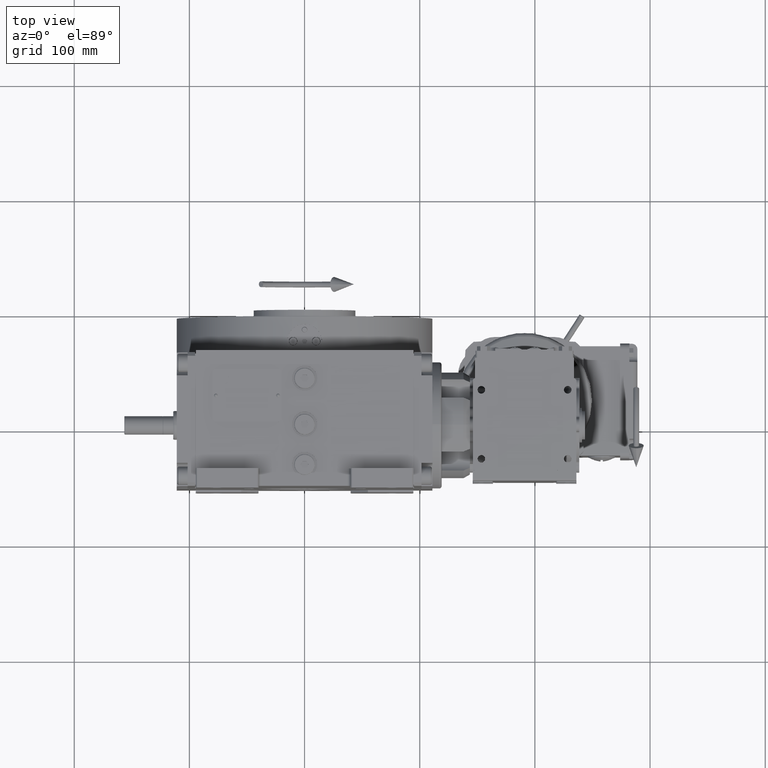
[diagram: clean part render]
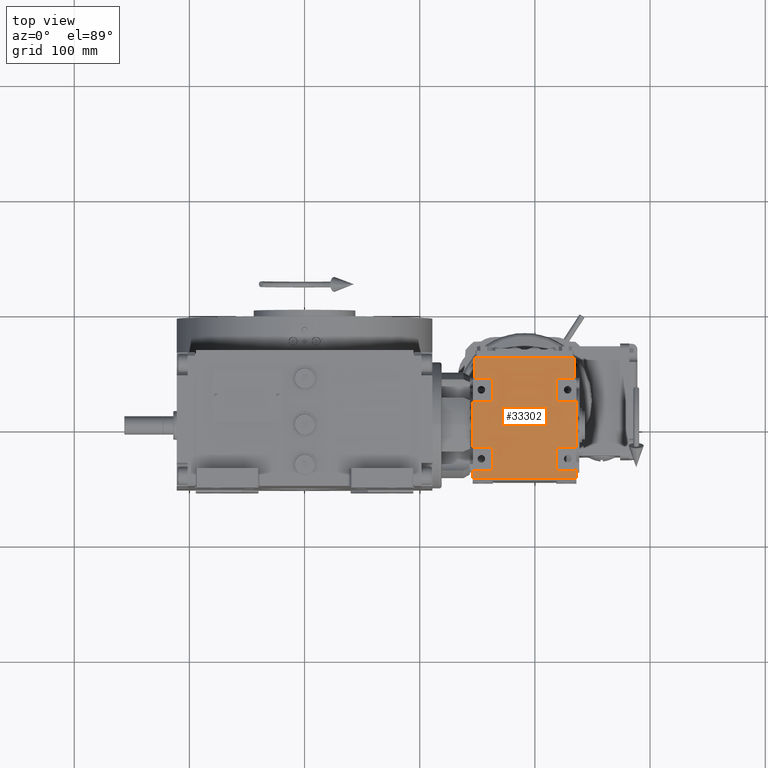
[diagram: same view with one face highlighted and labeled with its STEP entity id]
A machine part, top view. The second image highlights one B-rep face of the part: STEP entity #33302.
In plain terms, the highlighted planar face has unit normal (0, 0, -1).
Its self-contained STEP definition (entity closure, byte-faithful):
#20 = LINE ( 'NONE', #55152, #88598 ) ;
#98 = CIRCLE ( 'NONE', #16273, 1.599999999999997202 ) ;
#226 = CARTESIAN_POINT ( 'NONE',  ( -49.00000000000002842, 27.49999999999999645, 40.00000000000056843 ) ) ;
#428 = CARTESIAN_POINT ( 'NONE',  ( -49.00000000000113687, 44.99999999999998579, 58.00000000000056843 ) ) ;
#465 = CARTESIAN_POINT ( 'NONE',  ( -49.00000000000105871, -27.49999999999999645, 38.40000000000056701 ) ) ;
#862 = VECTOR ( 'NONE', #98782, 1000.000000000000000 ) ;
#1099 = AXIS2_PLACEMENT_3D ( 'NONE', #70783, #41425, #17143 ) ;
#1228 = CARTESIAN_POINT ( 'NONE',  ( -49.00000000000002842, -43.39999999999999147, 21.60000000000048104 ) ) ;
#1534 = AXIS2_PLACEMENT_3D ( 'NONE', #44915, #68658, #46399 ) ;
#1852 = LINE ( 'NONE', #47890, #29928 ) ;
#2828 = ORIENTED_EDGE ( 'NONE', *, *, #38984, .F. ) ;
#3039 = ORIENTED_EDGE ( 'NONE', *, *, #25816, .T. ) ;
#4201 = CIRCLE ( 'NONE', #13869, 1.600000000000000755 ) ;
#4412 = LINE ( 'NONE', #35262, #8875 ) ;
#4585 = VERTEX_POINT ( 'NONE', #30553 ) ;
#5180 = EDGE_CURVE ( 'NONE', #25248, #24804, #75665, .T. ) ;
#5904 = CARTESIAN_POINT ( 'NONE',  ( -49.00000000000000000, 29.10000000000001563, 20.00000000000047962 ) ) ;
#6231 = CARTESIAN_POINT ( 'NONE',  ( -48.99999999999894840, -27.49999999999999645, -38.39999999999943014 ) ) ;
#6594 = VECTOR ( 'NONE', #63134, 1000.000000000000000 ) ;
#6668 = EDGE_CURVE ( 'NONE', #46509, #32365, #18791, .T. ) ;
#6840 = DIRECTION ( 'NONE',  ( 9.769962616701377556E-15, -1.592073230999207776E-47, -1.000000000000000000 ) ) ;
#6915 = CARTESIAN_POINT ( 'NONE',  ( -48.99999999999894840, 27.49999999999999645, -38.39999999999943014 ) ) ;
#7027 = CARTESIAN_POINT ( 'NONE',  ( -48.99999999999997158, -43.39999999999999147, -39.99999999999943157 ) ) ;
#7191 = DIRECTION ( 'NONE',  ( 1.000000000000000000, 2.787682318313749644E-47, -9.769962616701377556E-15 ) ) ;
#7562 = DIRECTION ( 'NONE',  ( 9.769962616701377556E-15, -1.592073230999207776E-47, -1.000000000000000000 ) ) ;
#7703 = VECTOR ( 'NONE', #48901, 1000.000000000000000 ) ;
#7759 = AXIS2_PLACEMENT_3D ( 'NONE', #21764, #29362, #67791 ) ;
#8875 = VECTOR ( 'NONE', #98510, 1000.000000000000000 ) ;
#9200 = VECTOR ( 'NONE', #65705, 1000.000000000000000 ) ;
#9652 = CARTESIAN_POINT ( 'NONE',  ( -48.99999999999894840, 29.10000000000001563, -38.39999999999943014 ) ) ;
#9725 = CARTESIAN_POINT ( 'NONE',  ( -49.00000000000113687, 44.99999999999998579, 58.00000000000056843 ) ) ;
#9835 = VECTOR ( 'NONE', #37120, 1000.000000000000000 ) ;
#10174 = CARTESIAN_POINT ( 'NONE',  ( -49.00000000000002842, 44.99999999999998579, 21.60000000000048104 ) ) ;
#10583 = ORIENTED_EDGE ( 'NONE', *, *, #83548, .T. ) ;
#11480 = DIRECTION ( 'NONE',  ( 1.936935258355154808E-30, 1.000000000000000000, -1.982541115402059686E-16 ) ) ;
#11628 = DIRECTION ( 'NONE',  ( -8.673617379884051249E-15, 0.000000000000000000, 1.000000000000000000 ) ) ;
#11662 = DIRECTION ( 'NONE',  ( -9.769962616701377556E-15, 1.318382124685768400E-47, 1.000000000000000000 ) ) ;
#11679 = DIRECTION ( 'NONE',  ( 1.000000000000000000, 2.787682318313749644E-47, -9.769962616701377556E-15 ) ) ;
#11740 = ORIENTED_EDGE ( 'NONE', *, *, #58164, .T. ) ;
#11945 = LINE ( 'NONE', #43306, #54912 ) ;
#12158 = CARTESIAN_POINT ( 'NONE',  ( -49.00000000000002842, -27.49999999999999645, 21.60000000000048104 ) ) ;
#13833 = VERTEX_POINT ( 'NONE', #12158 ) ;
#13869 = AXIS2_PLACEMENT_3D ( 'NONE', #24550, #98648, #91093 ) ;
#14239 = AXIS2_PLACEMENT_3D ( 'NONE', #9652, #11679, #18268 ) ;
#14293 = DIRECTION ( 'NONE',  ( -8.673617379884030739E-15, 0.000000000000000000, 1.000000000000000000 ) ) ;
#14394 = VERTEX_POINT ( 'NONE', #85381 ) ;
#14651 = CARTESIAN_POINT ( 'NONE',  ( -49.00000000000105871, 29.10000000000001563, 38.40000000000056701 ) ) ;
#14965 = ORIENTED_EDGE ( 'NONE', *, *, #32789, .T. ) ;
#15985 = CIRCLE ( 'NONE', #85508, 1.599999999999997202 ) ;
#16060 = VECTOR ( 'NONE', #11480, 1000.000000000000000 ) ;
#16273 = AXIS2_PLACEMENT_3D ( 'NONE', #46227, #53836, #93306 ) ;
#16336 = DIRECTION ( 'NONE',  ( 9.899661568176278357E-15, -1.531028393104133123E-47, -1.000000000000000000 ) ) ;
#16377 = CARTESIAN_POINT ( 'NONE',  ( -49.00000000000002842, 44.99999999999998579, 40.00000000000056843 ) ) ;
#16428 = EDGE_CURVE ( 'NONE', #62240, #97797, #98565, .T. ) ;
#16885 = CARTESIAN_POINT ( 'NONE',  ( -48.99999999999997158, 29.10000000000001563, -21.59999999999952180 ) ) ;
#17143 = DIRECTION ( 'NONE',  ( -8.673617379884030739E-15, 0.000000000000000000, 1.000000000000000000 ) ) ;
#17308 = ORIENTED_EDGE ( 'NONE', *, *, #61358, .F. ) ;
#17818 = EDGE_CURVE ( 'NONE', #67243, #97797, #65924, .T. ) ;
#18268 = DIRECTION ( 'NONE',  ( -8.673617379884051249E-15, 0.000000000000000000, 1.000000000000000000 ) ) ;
#18791 = LINE ( 'NONE', #68796, #64582 ) ;
#18964 = ORIENTED_EDGE ( 'NONE', *, *, #65019, .T. ) ;
#19261 = CARTESIAN_POINT ( 'NONE',  ( -49.00000000000113687, -44.99999999999998579, 58.00000000000056843 ) ) ;
#19279 = EDGE_CURVE ( 'NONE', #92214, #73135, #96521, .T. ) ;
#19355 = VERTEX_POINT ( 'NONE', #44101 ) ;
#19621 = ORIENTED_EDGE ( 'NONE', *, *, #57845, .F. ) ;
#19948 = DIRECTION ( 'NONE',  ( 9.899661568176278357E-15, -1.531028393104133123E-47, -1.000000000000000000 ) ) ;
#20994 = DIRECTION ( 'NONE',  ( -1.011690731189673897E-14, 3.469446951953610245E-16, 1.000000000000000000 ) ) ;
#21764 = CARTESIAN_POINT ( 'NONE',  ( -48.99999999999894840, -43.39999999999999147, -38.39999999999943014 ) ) ;
#21795 = DIRECTION ( 'NONE',  ( -8.673617379884051249E-15, 0.000000000000000000, 1.000000000000000000 ) ) ;
#21837 = LINE ( 'NONE', #42643, #862 ) ;
#21853 = LINE ( 'NONE', #29450, #31487 ) ;
#21962 = CARTESIAN_POINT ( 'NONE',  ( -49.00000000000002842, -29.10000000000001563, 40.00000000000056843 ) ) ;
#22638 = AXIS2_PLACEMENT_3D ( 'NONE', #30463, #7191, #14293 ) ;
#23570 = ORIENTED_EDGE ( 'NONE', *, *, #98759, .F. ) ;
#24384 = CARTESIAN_POINT ( 'NONE',  ( -49.00000000000002842, -44.99999999999998579, 21.60000000000048104 ) ) ;
#24550 = CARTESIAN_POINT ( 'NONE',  ( -49.00000000000002842, 29.10000000000001563, 21.60000000000048104 ) ) ;
#24804 = VERTEX_POINT ( 'NONE', #92580 ) ;
#24815 = EDGE_CURVE ( 'NONE', #30412, #70325, #94063, .T. ) ;
#25248 = VERTEX_POINT ( 'NONE', #6915 ) ;
#25301 = ORIENTED_EDGE ( 'NONE', *, *, #19279, .F. ) ;
#25508 = ORIENTED_EDGE ( 'NONE', *, *, #85723, .F. ) ;
#25809 = CIRCLE ( 'NONE', #75982, 1.599999999999997202 ) ;
#25816 = EDGE_CURVE ( 'NONE', #50351, #91840, #36398, .T. ) ;
#26353 = CARTESIAN_POINT ( 'NONE',  ( -48.99999999999997158, -44.99999999999998579, -21.59999999999952180 ) ) ;
#26440 = VERTEX_POINT ( 'NONE', #49702 ) ;
#26848 = DIRECTION ( 'NONE',  ( -8.673617379884030739E-15, 0.000000000000000000, 1.000000000000000000 ) ) ;
#27068 = ORIENTED_EDGE ( 'NONE', *, *, #24815, .F. ) ;
#27349 = DIRECTION ( 'NONE',  ( 1.000000000000000000, 2.787682318313749644E-47, -9.769962616701377556E-15 ) ) ;
#29216 = CARTESIAN_POINT ( 'NONE',  ( -48.99999999999997158, -44.99999999999998579, -39.99999999999943157 ) ) ;
#29331 = LINE ( 'NONE', #32290, #77297 ) ;
#29338 = ORIENTED_EDGE ( 'NONE', *, *, #80080, .T. ) ;
#29362 = DIRECTION ( 'NONE',  ( 1.000000000000000000, 2.787682318313749644E-47, -9.769962616701377556E-15 ) ) ;
#29450 = CARTESIAN_POINT ( 'NONE',  ( -49.00000000000113687, -44.99999999999998579, 58.00000000000056843 ) ) ;
#29928 = VECTOR ( 'NONE', #73215, 1000.000000000000000 ) ;
#30412 = VERTEX_POINT ( 'NONE', #82957 ) ;
#30463 = CARTESIAN_POINT ( 'NONE',  ( -49.00000000000002842, 43.39999999999999147, 21.60000000000048104 ) ) ;
#30553 = CARTESIAN_POINT ( 'NONE',  ( -48.99999999999886313, 44.99999999999998579, -46.99999999999943157 ) ) ;
#30855 = EDGE_CURVE ( 'NONE', #19355, #32636, #4412, .T. ) ;
#30869 = DIRECTION ( 'NONE',  ( -2.856105094892107908E-47, -1.000000000000000000, -1.430389277597439021E-47 ) ) ;
#31099 = DIRECTION ( 'NONE',  ( -8.673617379884030739E-15, 0.000000000000000000, 1.000000000000000000 ) ) ;
#31487 = VECTOR ( 'NONE', #92725, 1000.000000000000000 ) ;
#31773 = CIRCLE ( 'NONE', #1099, 1.600000000000000755 ) ;
#32024 = EDGE_CURVE ( 'NONE', #26440, #36533, #4201, .T. ) ;
#32290 = CARTESIAN_POINT ( 'NONE',  ( -49.00000000000113687, -42.99999999999998579, 58.00000000000056843 ) ) ;
#32365 = VERTEX_POINT ( 'NONE', #21962 ) ;
#32590 = EDGE_CURVE ( 'NONE', #33009, #51032, #85724, .T. ) ;
#32636 = VERTEX_POINT ( 'NONE', #61415 ) ;
#32772 = ORIENTED_EDGE ( 'NONE', *, *, #35213, .T. ) ;
#32789 = EDGE_CURVE ( 'NONE', #4585, #56509, #21837, .T. ) ;
#33009 = VERTEX_POINT ( 'NONE', #76002 ) ;
#33302 = ADVANCED_FACE ( 'NONE', ( #98163 ), #89606, .F. ) ;
#34290 = EDGE_CURVE ( 'NONE', #36048, #4585, #63364, .T. ) ;
#34926 = DIRECTION ( 'NONE',  ( 1.000000000000000000, 2.787682318313749644E-47, -9.769962616701377556E-15 ) ) ;
#35213 = EDGE_CURVE ( 'NONE', #62240, #66749, #38591, .T. ) ;
#35262 = CARTESIAN_POINT ( 'NONE',  ( -49.00000000000000000, 27.49999999999999645, -19.99999999999952038 ) ) ;
#35347 = VECTOR ( 'NONE', #20994, 1000.000000000000000 ) ;
#35639 = LINE ( 'NONE', #98395, #9835 ) ;
#36048 = VERTEX_POINT ( 'NONE', #69871 ) ;
#36398 = LINE ( 'NONE', #60191, #68141 ) ;
#36533 = VERTEX_POINT ( 'NONE', #5904 ) ;
#36540 = VECTOR ( 'NONE', #39633, 1000.000000000000000 ) ;
#37120 = DIRECTION ( 'NONE',  ( -2.856105094892107908E-47, -1.000000000000000000, -1.430389277597439021E-47 ) ) ;
#37598 = CARTESIAN_POINT ( 'NONE',  ( -48.99999999999997158, 43.39999999999999147, -39.99999999999943157 ) ) ;
#37712 = DIRECTION ( 'NONE',  ( 1.000000000000000000, 2.787682318313749644E-47, -9.769962616701377556E-15 ) ) ;
#38581 = ORIENTED_EDGE ( 'NONE', *, *, #58878, .F. ) ;
#38591 = CIRCLE ( 'NONE', #40183, 1.599999999999997202 ) ;
#38984 = EDGE_CURVE ( 'NONE', #83810, #13833, #41300, .T. ) ;
#39213 = EDGE_CURVE ( 'NONE', #91840, #51032, #90900, .T. ) ;
#39633 = DIRECTION ( 'NONE',  ( 2.856105094892107908E-47, 1.000000000000000000, 1.430389277597439021E-47 ) ) ;
#39773 = CARTESIAN_POINT ( 'NONE',  ( -48.99999999999886313, -44.99999999999998579, -46.99999999999943157 ) ) ;
#39817 = CARTESIAN_POINT ( 'NONE',  ( -48.99999999999997158, 27.49999999999999645, -21.59999999999952180 ) ) ;
#40183 = AXIS2_PLACEMENT_3D ( 'NONE', #63730, #50085, #11628 ) ;
#40805 = ORIENTED_EDGE ( 'NONE', *, *, #58614, .T. ) ;
#40881 = CARTESIAN_POINT ( 'NONE',  ( -49.00000000000000000, -44.99999999999998579, 20.00000000000047962 ) ) ;
#41300 = LINE ( 'NONE', #79276, #7703 ) ;
#41425 = DIRECTION ( 'NONE',  ( 1.000000000000000000, 2.787682318313749644E-47, -9.769962616701377556E-15 ) ) ;
#41909 = EDGE_CURVE ( 'NONE', #65385, #69412, #45263, .T. ) ;
#42643 = CARTESIAN_POINT ( 'NONE',  ( -48.99999999999886313, -44.99999999999998579, -46.99999999999943157 ) ) ;
#43306 = CARTESIAN_POINT ( 'NONE',  ( -48.99999999999997158, 27.49999999999999645, -39.99999999999943157 ) ) ;
#44101 = CARTESIAN_POINT ( 'NONE',  ( -49.00000000000000000, 29.10000000000001563, -19.99999999999952038 ) ) ;
#44275 = CARTESIAN_POINT ( 'NONE',  ( -48.99999999999997158, -27.49999999999999645, -21.59999999999952180 ) ) ;
#44512 = DIRECTION ( 'NONE',  ( 2.856105094892107908E-47, 1.000000000000000000, 1.430389277597439021E-47 ) ) ;
#44915 = CARTESIAN_POINT ( 'NONE',  ( -48.99999999999997158, -43.39999999999999147, -21.59999999999952180 ) ) ;
#45263 = CIRCLE ( 'NONE', #22638, 1.600000000000000755 ) ;
#45532 = DIRECTION ( 'NONE',  ( -8.673617379884051249E-15, 0.000000000000000000, 1.000000000000000000 ) ) ;
#45702 = AXIS2_PLACEMENT_3D ( 'NONE', #46309, #37712, #76706 ) ;
#46227 = CARTESIAN_POINT ( 'NONE',  ( -49.00000000000105871, -29.10000000000001563, 38.40000000000056701 ) ) ;
#46309 = CARTESIAN_POINT ( 'NONE',  ( -48.99999999999997158, -29.10000000000001563, -21.59999999999952180 ) ) ;
#46399 = DIRECTION ( 'NONE',  ( -8.673617379884030739E-15, 0.000000000000000000, 1.000000000000000000 ) ) ;
#46509 = VERTEX_POINT ( 'NONE', #51823 ) ;
#47631 = CARTESIAN_POINT ( 'NONE',  ( -49.00000000000000000, -43.39999999999999147, -19.99999999999952038 ) ) ;
#47743 = DIRECTION ( 'NONE',  ( -8.673617379884030739E-15, 0.000000000000000000, 1.000000000000000000 ) ) ;
#47890 = CARTESIAN_POINT ( 'NONE',  ( -48.99999999999997158, -27.49999999999999645, -39.99999999999943157 ) ) ;
#48901 = DIRECTION ( 'NONE',  ( 1.011690731189673897E-14, 3.469446951953610245E-16, -1.000000000000000000 ) ) ;
#49702 = CARTESIAN_POINT ( 'NONE',  ( -49.00000000000002842, 27.49999999999999645, 21.60000000000048104 ) ) ;
#50085 = DIRECTION ( 'NONE',  ( 1.000000000000000000, 2.787682318313749644E-47, -9.769962616701377556E-15 ) ) ;
#50351 = VERTEX_POINT ( 'NONE', #70058 ) ;
#51032 = VERTEX_POINT ( 'NONE', #94258 ) ;
#51823 = CARTESIAN_POINT ( 'NONE',  ( -49.00000000000002842, -42.99999999999998579, 40.00000000000056843 ) ) ;
#52061 = VERTEX_POINT ( 'NONE', #24384 ) ;
#52346 = LINE ( 'NONE', #226, #35347 ) ;
#53765 = CARTESIAN_POINT ( 'NONE',  ( -49.00000000000000000, -43.39999999999999147, 20.00000000000047962 ) ) ;
#53836 = DIRECTION ( 'NONE',  ( 1.000000000000000000, 2.787682318313749644E-47, -9.769962616701377556E-15 ) ) ;
#53871 = EDGE_CURVE ( 'NONE', #69412, #14394, #55549, .T. ) ;
#54912 = VECTOR ( 'NONE', #73698, 1000.000000000000000 ) ;
#55152 = CARTESIAN_POINT ( 'NONE',  ( -48.99999999999997158, 44.99999999999998579, -39.99999999999943157 ) ) ;
#55549 = LINE ( 'NONE', #428, #90016 ) ;
#55815 = ORIENTED_EDGE ( 'NONE', *, *, #61494, .T. ) ;
#56509 = VERTEX_POINT ( 'NONE', #39773 ) ;
#57642 = VERTEX_POINT ( 'NONE', #82245 ) ;
#57845 = EDGE_CURVE ( 'NONE', #26440, #57642, #52346, .T. ) ;
#58164 = EDGE_CURVE ( 'NONE', #33009, #57642, #15985, .T. ) ;
#58219 = DIRECTION ( 'NONE',  ( 1.000000000000000000, -1.682181801368869444E-32, 9.769962616701377556E-15 ) ) ;
#58614 = EDGE_CURVE ( 'NONE', #92214, #72268, #87242, .T. ) ;
#58840 = ORIENTED_EDGE ( 'NONE', *, *, #6668, .F. ) ;
#58878 = EDGE_CURVE ( 'NONE', #25248, #87739, #11945, .T. ) ;
#59211 = ORIENTED_EDGE ( 'NONE', *, *, #16428, .F. ) ;
#60191 = CARTESIAN_POINT ( 'NONE',  ( -49.00000000000113687, -44.99999999999998579, 58.00000000000056843 ) ) ;
#60548 = ORIENTED_EDGE ( 'NONE', *, *, #41909, .T. ) ;
#61358 = EDGE_CURVE ( 'NONE', #65385, #36533, #35639, .T. ) ;
#61415 = CARTESIAN_POINT ( 'NONE',  ( -49.00000000000000000, 43.39999999999999147, -19.99999999999952038 ) ) ;
#61494 = EDGE_CURVE ( 'NONE', #83810, #32365, #98, .T. ) ;
#61779 = ORIENTED_EDGE ( 'NONE', *, *, #75886, .F. ) ;
#62204 = CIRCLE ( 'NONE', #91384, 1.600000000000000755 ) ;
#62240 = VERTEX_POINT ( 'NONE', #87087 ) ;
#62633 = DIRECTION ( 'NONE',  ( 9.899661568176278357E-15, -1.531028393104133123E-47, -1.000000000000000000 ) ) ;
#62816 = ORIENTED_EDGE ( 'NONE', *, *, #89186, .F. ) ;
#63134 = DIRECTION ( 'NONE',  ( -3.873870516710310316E-30, -1.000000000000000000, 3.965082230804129727E-16 ) ) ;
#63364 = LINE ( 'NONE', #9725, #78613 ) ;
#63459 = ORIENTED_EDGE ( 'NONE', *, *, #53871, .T. ) ;
#63508 = CIRCLE ( 'NONE', #86189, 1.600000000000000755 ) ;
#63730 = CARTESIAN_POINT ( 'NONE',  ( -48.99999999999894840, -29.10000000000001563, -38.39999999999943014 ) ) ;
#64582 = VECTOR ( 'NONE', #99705, 1000.000000000000000 ) ;
#65019 = EDGE_CURVE ( 'NONE', #52061, #70325, #66437, .T. ) ;
#65385 = VERTEX_POINT ( 'NONE', #83675 ) ;
#65620 = ORIENTED_EDGE ( 'NONE', *, *, #32024, .T. ) ;
#65705 = DIRECTION ( 'NONE',  ( -2.856105094892107908E-47, -1.000000000000000000, -1.430389277597439021E-47 ) ) ;
#65924 = CIRCLE ( 'NONE', #7759, 1.599999999999997202 ) ;
#66246 = EDGE_CURVE ( 'NONE', #68712, #73135, #68296, .T. ) ;
#66437 = CIRCLE ( 'NONE', #98806, 1.600000000000000755 ) ;
#66749 = VERTEX_POINT ( 'NONE', #6231 ) ;
#67243 = VERTEX_POINT ( 'NONE', #67328 ) ;
#67328 = CARTESIAN_POINT ( 'NONE',  ( -48.99999999999894840, -44.99999999999998579, -38.39999999999943014 ) ) ;
#67443 = LINE ( 'NONE', #74578, #88123 ) ;
#67659 = ORIENTED_EDGE ( 'NONE', *, *, #30855, .F. ) ;
#67791 = DIRECTION ( 'NONE',  ( -8.673617379884051249E-15, 0.000000000000000000, 1.000000000000000000 ) ) ;
#68141 = VECTOR ( 'NONE', #44512, 1000.000000000000000 ) ;
#68296 = CIRCLE ( 'NONE', #45702, 1.600000000000000755 ) ;
#68658 = DIRECTION ( 'NONE',  ( 1.000000000000000000, 2.787682318313749644E-47, -9.769962616701377556E-15 ) ) ;
#68712 = VERTEX_POINT ( 'NONE', #44275 ) ;
#68796 = CARTESIAN_POINT ( 'NONE',  ( -49.00000000000002842, -27.49999999999999645, 40.00000000000056843 ) ) ;
#68837 = CARTESIAN_POINT ( 'NONE',  ( -48.99999999999894840, 43.39999999999999147, -38.39999999999943014 ) ) ;
#68863 = EDGE_LOOP ( 'NONE', ( #83992, #14965, #87196, #86399, #59211, #32772, #25508, #69686, #25301, #40805, #23570, #18964, #27068, #89810, #2828, #55815, #58840, #61779, #3039, #92876, #89969, #11740, #19621, #65620, #17308, #60548, #63459, #90435, #67659, #10583, #38581, #88860, #62816, #29338 ) ) ;
#69412 = VERTEX_POINT ( 'NONE', #10174 ) ;
#69676 = EDGE_CURVE ( 'NONE', #14394, #32636, #62204, .T. ) ;
#69686 = ORIENTED_EDGE ( 'NONE', *, *, #66246, .T. ) ;
#69871 = CARTESIAN_POINT ( 'NONE',  ( -48.99999999999894840, 44.99999999999998579, -38.39999999999943014 ) ) ;
#70058 = CARTESIAN_POINT ( 'NONE',  ( -49.00000000000113687, -42.99999999999998579, 58.00000000000056843 ) ) ;
#70325 = VERTEX_POINT ( 'NONE', #53765 ) ;
#70783 = CARTESIAN_POINT ( 'NONE',  ( -49.00000000000002842, -29.10000000000001563, 21.60000000000048104 ) ) ;
#70971 = EDGE_CURVE ( 'NONE', #67243, #56509, #67443, .T. ) ;
#71715 = CARTESIAN_POINT ( 'NONE',  ( -49.00000000000000000, -27.49999999999999645, -19.99999999999952038 ) ) ;
#72268 = VERTEX_POINT ( 'NONE', #26353 ) ;
#72935 = CARTESIAN_POINT ( 'NONE',  ( -48.99999999999997158, 43.39999999999999147, -21.59999999999952180 ) ) ;
#72952 = EDGE_CURVE ( 'NONE', #30412, #13833, #31773, .T. ) ;
#73135 = VERTEX_POINT ( 'NONE', #79670 ) ;
#73205 = CARTESIAN_POINT ( 'NONE',  ( -49.00000000000113687, 42.99999999999998579, 58.00000000000056843 ) ) ;
#73215 = DIRECTION ( 'NONE',  ( 1.011690731189673897E-14, -1.387778780781440154E-15, -1.000000000000000000 ) ) ;
#73698 = DIRECTION ( 'NONE',  ( -1.011690731189673897E-14, 1.565623842786603819E-47, 1.000000000000000000 ) ) ;
#74578 = CARTESIAN_POINT ( 'NONE',  ( -49.00000000000113687, -44.99999999999998579, 58.00000000000056843 ) ) ;
#75665 = CIRCLE ( 'NONE', #14239, 1.599999999999997202 ) ;
#75886 = EDGE_CURVE ( 'NONE', #50351, #46509, #29331, .T. ) ;
#75982 = AXIS2_PLACEMENT_3D ( 'NONE', #68837, #91671, #21795 ) ;
#76002 = CARTESIAN_POINT ( 'NONE',  ( -49.00000000000002842, 29.10000000000001563, 40.00000000000056843 ) ) ;
#76706 = DIRECTION ( 'NONE',  ( -8.673617379884030739E-15, 0.000000000000000000, 1.000000000000000000 ) ) ;
#77297 = VECTOR ( 'NONE', #7562, 1000.000000000000000 ) ;
#77664 = DIRECTION ( 'NONE',  ( 1.000000000000000000, 2.787682318313749644E-47, -9.769962616701377556E-15 ) ) ;
#78613 = VECTOR ( 'NONE', #16336, 1000.000000000000000 ) ;
#79276 = CARTESIAN_POINT ( 'NONE',  ( -49.00000000000000000, -27.49999999999999645, 20.00000000000047962 ) ) ;
#79663 = VERTEX_POINT ( 'NONE', #37598 ) ;
#79670 = CARTESIAN_POINT ( 'NONE',  ( -49.00000000000000000, -29.10000000000001563, -19.99999999999952038 ) ) ;
#80080 = EDGE_CURVE ( 'NONE', #79663, #36048, #25809, .T. ) ;
#82245 = CARTESIAN_POINT ( 'NONE',  ( -49.00000000000105871, 27.49999999999999645, 38.40000000000056701 ) ) ;
#82957 = CARTESIAN_POINT ( 'NONE',  ( -49.00000000000000000, -29.10000000000001563, 20.00000000000047962 ) ) ;
#83548 = EDGE_CURVE ( 'NONE', #19355, #87739, #63508, .T. ) ;
#83675 = CARTESIAN_POINT ( 'NONE',  ( -49.00000000000000000, 43.39999999999999147, 20.00000000000047962 ) ) ;
#83810 = VERTEX_POINT ( 'NONE', #465 ) ;
#83992 = ORIENTED_EDGE ( 'NONE', *, *, #34290, .T. ) ;
#85237 = VECTOR ( 'NONE', #6840, 1000.000000000000000 ) ;
#85381 = CARTESIAN_POINT ( 'NONE',  ( -48.99999999999997158, 44.99999999999998579, -21.59999999999952180 ) ) ;
#85508 = AXIS2_PLACEMENT_3D ( 'NONE', #14651, #97819, #45532 ) ;
#85723 = EDGE_CURVE ( 'NONE', #68712, #66749, #1852, .T. ) ;
#85724 = LINE ( 'NONE', #16377, #36540 ) ;
#86189 = AXIS2_PLACEMENT_3D ( 'NONE', #16885, #34926, #47743 ) ;
#86399 = ORIENTED_EDGE ( 'NONE', *, *, #17818, .T. ) ;
#87087 = CARTESIAN_POINT ( 'NONE',  ( -48.99999999999997158, -29.10000000000001563, -39.99999999999943157 ) ) ;
#87196 = ORIENTED_EDGE ( 'NONE', *, *, #70971, .F. ) ;
#87242 = CIRCLE ( 'NONE', #1534, 1.600000000000000755 ) ;
#87739 = VERTEX_POINT ( 'NONE', #39817 ) ;
#88123 = VECTOR ( 'NONE', #19948, 1000.000000000000000 ) ;
#88598 = VECTOR ( 'NONE', #30869, 1000.000000000000000 ) ;
#88860 = ORIENTED_EDGE ( 'NONE', *, *, #5180, .T. ) ;
#89186 = EDGE_CURVE ( 'NONE', #79663, #24804, #20, .T. ) ;
#89606 = PLANE ( 'NONE',  #93075 ) ;
#89810 = ORIENTED_EDGE ( 'NONE', *, *, #72952, .T. ) ;
#89969 = ORIENTED_EDGE ( 'NONE', *, *, #32590, .F. ) ;
#90016 = VECTOR ( 'NONE', #62633, 1000.000000000000000 ) ;
#90435 = ORIENTED_EDGE ( 'NONE', *, *, #69676, .T. ) ;
#90900 = LINE ( 'NONE', #91880, #85237 ) ;
#91093 = DIRECTION ( 'NONE',  ( -8.673617379884030739E-15, 0.000000000000000000, 1.000000000000000000 ) ) ;
#91384 = AXIS2_PLACEMENT_3D ( 'NONE', #72935, #27349, #26848 ) ;
#91671 = DIRECTION ( 'NONE',  ( 1.000000000000000000, 2.787682318313749644E-47, -9.769962616701377556E-15 ) ) ;
#91840 = VERTEX_POINT ( 'NONE', #73205 ) ;
#91880 = CARTESIAN_POINT ( 'NONE',  ( -49.00000000000113687, 42.99999999999998579, 58.00000000000056843 ) ) ;
#92214 = VERTEX_POINT ( 'NONE', #47631 ) ;
#92580 = CARTESIAN_POINT ( 'NONE',  ( -48.99999999999997158, 29.10000000000001563, -39.99999999999943157 ) ) ;
#92725 = DIRECTION ( 'NONE',  ( 9.899661568176278357E-15, -1.531028393104133123E-47, -1.000000000000000000 ) ) ;
#92876 = ORIENTED_EDGE ( 'NONE', *, *, #39213, .T. ) ;
#93075 = AXIS2_PLACEMENT_3D ( 'NONE', #19261, #58219, #11662 ) ;
#93306 = DIRECTION ( 'NONE',  ( -8.673617379884051249E-15, 0.000000000000000000, 1.000000000000000000 ) ) ;
#94063 = LINE ( 'NONE', #40881, #6594 ) ;
#94258 = CARTESIAN_POINT ( 'NONE',  ( -49.00000000000002842, 42.99999999999998579, 40.00000000000056843 ) ) ;
#96521 = LINE ( 'NONE', #71715, #16060 ) ;
#97797 = VERTEX_POINT ( 'NONE', #7027 ) ;
#97819 = DIRECTION ( 'NONE',  ( 1.000000000000000000, 2.787682318313749644E-47, -9.769962616701377556E-15 ) ) ;
#98163 = FACE_OUTER_BOUND ( 'NONE', #68863, .T. ) ;
#98395 = CARTESIAN_POINT ( 'NONE',  ( -49.00000000000000000, 27.49999999999999645, 20.00000000000047962 ) ) ;
#98510 = DIRECTION ( 'NONE',  ( 1.936935258355169171E-30, 1.000000000000000000, -1.982541115402069794E-16 ) ) ;
#98565 = LINE ( 'NONE', #29216, #9200 ) ;
#98648 = DIRECTION ( 'NONE',  ( 1.000000000000000000, 2.787682318313749644E-47, -9.769962616701377556E-15 ) ) ;
#98759 = EDGE_CURVE ( 'NONE', #52061, #72268, #21853, .T. ) ;
#98782 = DIRECTION ( 'NONE',  ( -2.856105094892107908E-47, -1.000000000000000000, -1.430389277597439021E-47 ) ) ;
#98806 = AXIS2_PLACEMENT_3D ( 'NONE', #1228, #77664, #31099 ) ;
#99705 = DIRECTION ( 'NONE',  ( 2.856105094892107908E-47, 1.000000000000000000, 1.430389277597439021E-47 ) ) ;